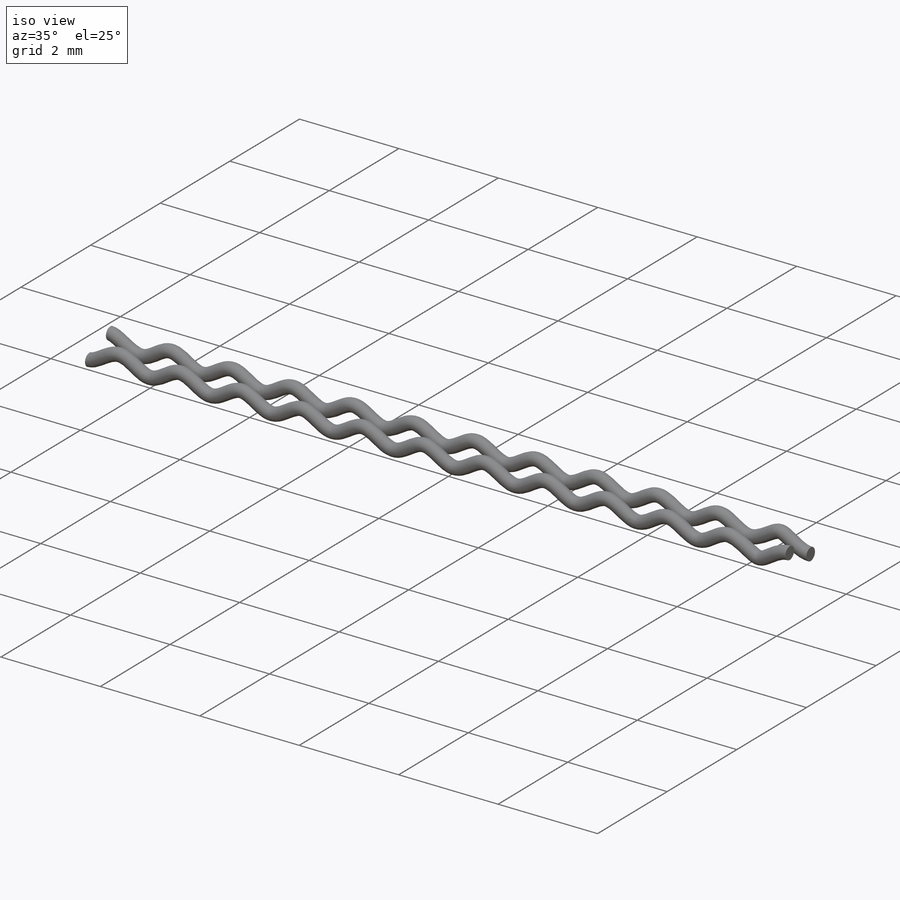
[diagram: iso view]
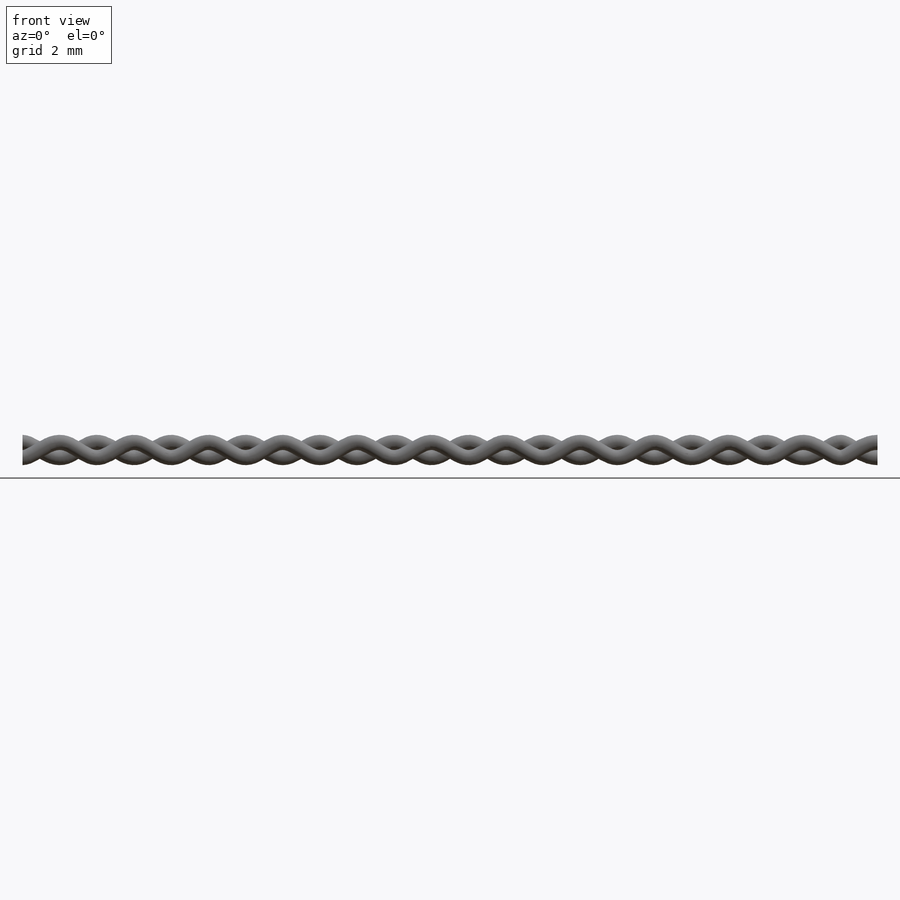
[diagram: front view]
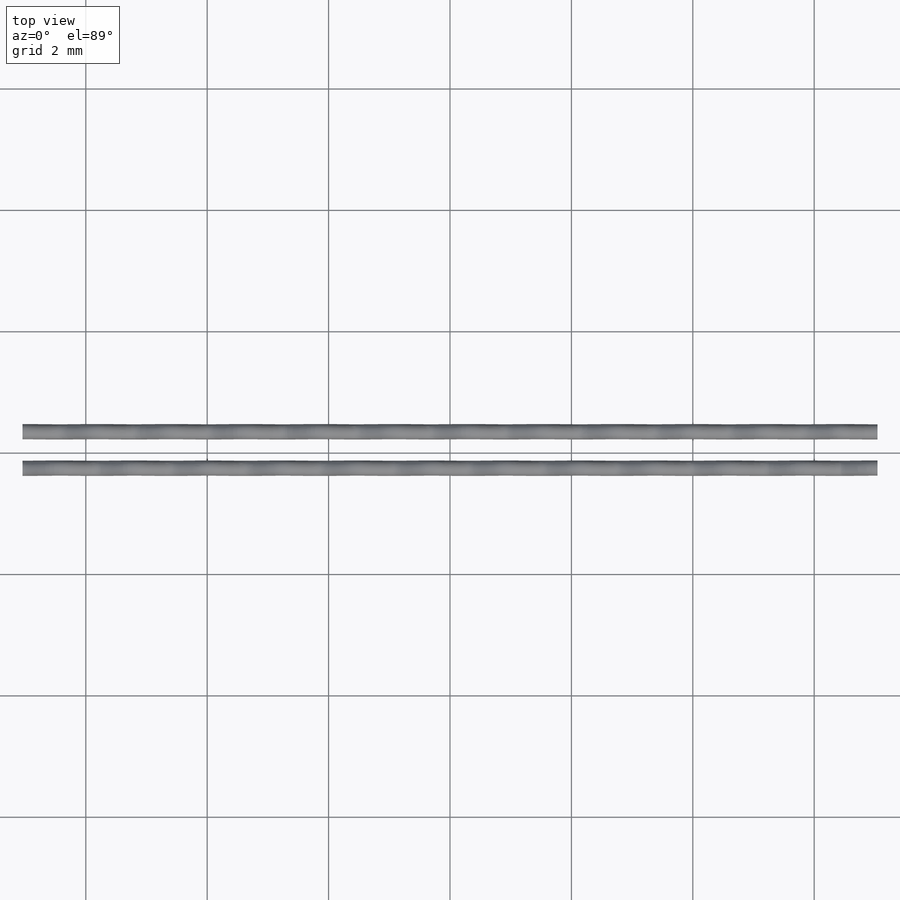
[diagram: top view]
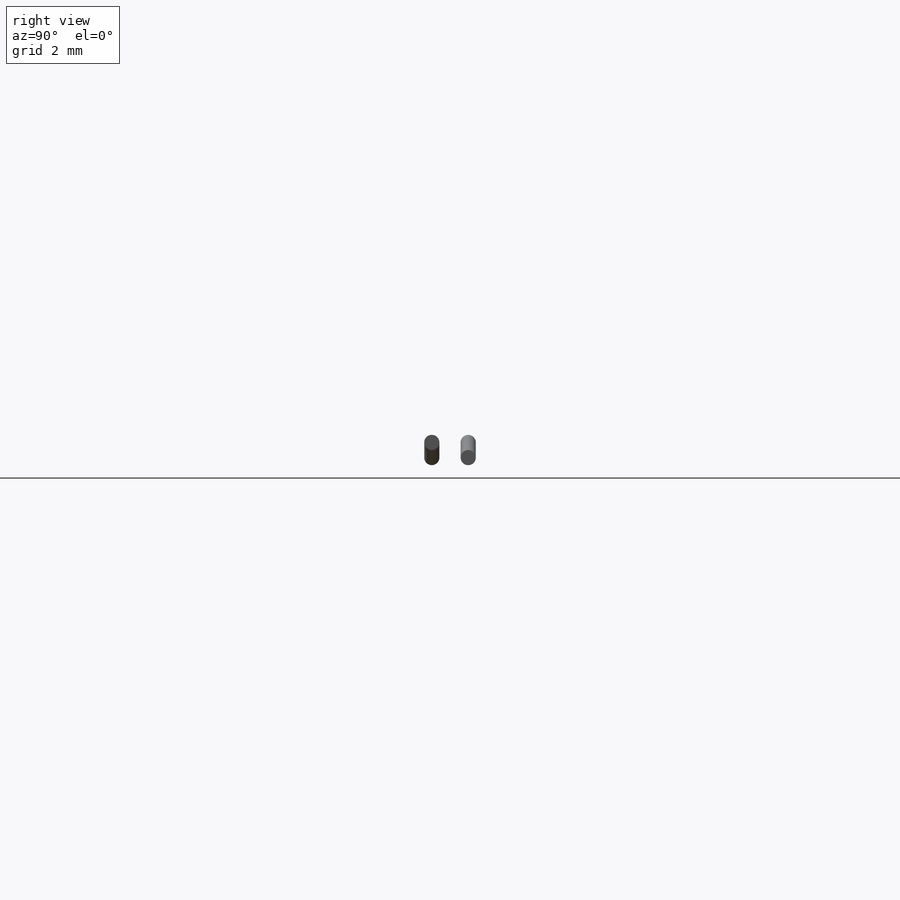
[diagram: right view]
SOLIDWORKS PART (.sldprt)
format: sldprt  version: not decoded by parser v0  size: 9,837,056 bytes
history: native  units: mm
features: sketch x10, plane x6, sweep x4, pattern_linear x4, material x1, extrude x1 (+16 scaffold rows collapsed)
feature tree (42):
  scaffold x16  (default folders/planes/origin — collapsed)
  material  "Material <not specified>"
  sketch  "Sketch1"  dims[D1=12.25mm D2=12.75mm D3=12.75mm D4=6.375mm D5=6.375mm]
  extrude  "Extrude1"  Depth=0.5mm
  plane  "Plane1"  Offset=7.65625mm
  plane  "Plane2"  Offset=0.6mm
  plane  "Plane3"  Offset=8.26875mm
  plane  "Plane4"  Offset=0.6mm
  sketch  "Sketch2"  dims[D1=0.25mm D2=14.0875mm D3=~7.04375mm D4=0.25mm]
  sketch  "Sketch3"  dims[D1=0.25mm D2=14.0875mm D3=~7.04375mm D4=0.25mm]
  sketch  "Sketch4"  dims[D1=0.25mm D2=14.0875mm D3=~7.04375mm D4=0.25mm]
  sketch  "Sketch5"  dims[D1=0.25mm D2=14.0875mm D3=~7.04375mm D4=0.25mm]
  plane  "Plane5"
  plane  "Plane6"
  sketch  "Sketch6"  dims[D1=0.25mm]
  sketch  "Sketch7"  dims[D1=0.25mm]
  sketch  "Sketch8"  dims[D1=0.25mm]
  sketch  "Sketch9"  dims[D1=0.25mm]
  sweep  "Sweep1"
  sweep  "Sweep2"
  sweep  "Sweep3"
  sweep  "Sweep4"
  pattern_linear  "LPattern2"  Count1=13 Count2=1 Spacing1=1.225mm Spacing2=10mm
  pattern_linear  "LPattern3"  Count1=12 Count2=1 Spacing1=1.225mm Spacing2=10mm
  pattern_linear  "LPattern5"  Count1=12 Count2=1 Spacing1=1.225mm Spacing2=10mm
  pattern_linear  "LPattern6"  Count1=12 Count2=1 Spacing1=1.225mm Spacing2=10mm
  sketch  "Sketch10"  dims[D1=12.5mm D2=20.0mm D3=20.0mm D4=10.0mm D5=10.0mm]
decode coverage: 15 of 19 modeling features carry decoded parameters
note: ~ marks probable driven/reference dimensions
summary: profile_refs inferred from adjacent sketches, not decoded
note: suppression state not decoded; provenance and decode notes live in map.json
